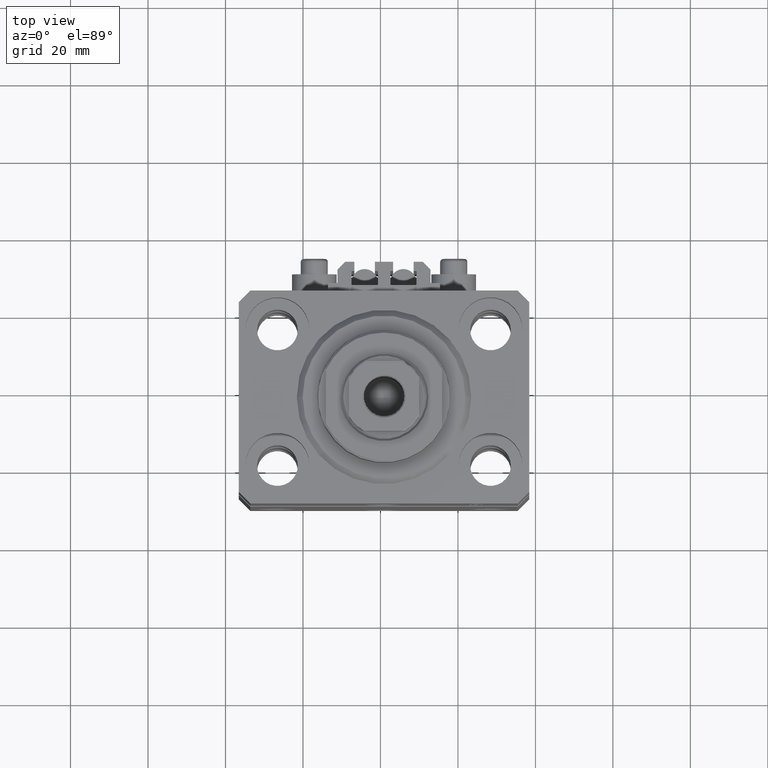
[diagram: clean part render]
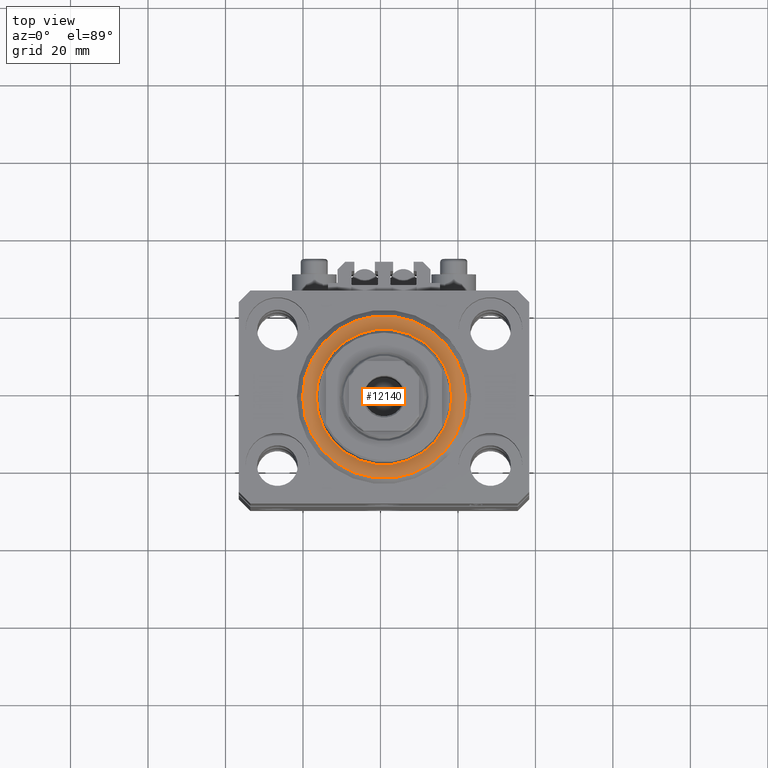
[diagram: same view with one face highlighted and labeled with its STEP entity id]
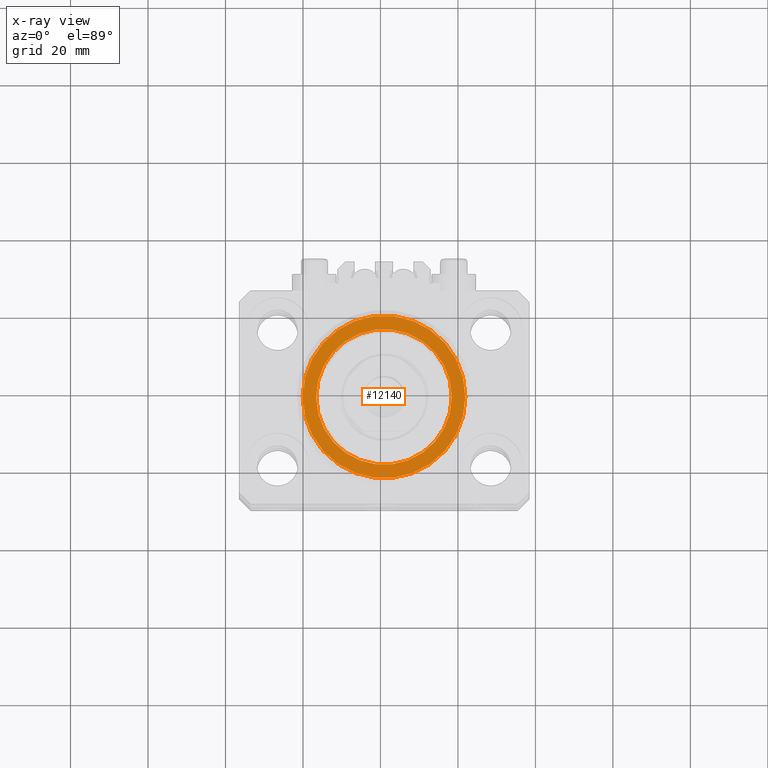
[diagram: x-ray of the same camera — body ghosted, the highlighted face saturated]
A machine part, top view. The second image highlights one B-rep face of the part: STEP entity #12140.
The next image is the same camera in x-ray: the body ghosted, the highlighted face saturated — about 0% of this face is hidden behind the body in this view.
In plain terms, the highlighted planar face has unit normal (0, 0, -1).
Its self-contained STEP definition (entity closure, byte-faithful):
#1990 = VERTEX_POINT ( 'NONE', #32033 ) ;
#4994 = AXIS2_PLACEMENT_3D ( 'NONE', #5464, #13008, #21065 ) ;
#5099 = AXIS2_PLACEMENT_3D ( 'NONE', #43881, #29037, #25377 ) ;
#5464 = CARTESIAN_POINT ( 'NONE',  ( 0.000000000000000000, 0.000000000000000000, 0.000000000000000000 ) ) ;
#8362 = EDGE_CURVE ( 'NONE', #26997, #44157, #31483, .T. ) ;
#8419 = CARTESIAN_POINT ( 'NONE',  ( 17.50000000000000000, 0.000000000000000000, -2.168404344971008868E-16 ) ) ;
#10084 = DIRECTION ( 'NONE',  ( 1.000000000000000000, 0.000000000000000000, 0.000000000000000000 ) ) ;
#12140 = ADVANCED_FACE ( 'NONE', ( #47774, #39769 ), #31983, .F. ) ;
#12493 = DIRECTION ( 'NONE',  ( -0.000000000000000000, -0.000000000000000000, -1.000000000000000000 ) ) ;
#13008 = DIRECTION ( 'NONE',  ( 0.000000000000000000, 0.000000000000000000, 1.000000000000000000 ) ) ;
#14104 = CARTESIAN_POINT ( 'NONE',  ( -17.50000000000000000, 2.143131898507868643E-15, -2.168404344971008868E-16 ) ) ;
#14260 = CARTESIAN_POINT ( 'NONE',  ( 20.99999999999998934, 0.000000000000000000, 0.000000000000000000 ) ) ;
#15180 = CARTESIAN_POINT ( 'NONE',  ( 0.000000000000000000, 0.000000000000000000, 0.000000000000000000 ) ) ;
#16150 = CARTESIAN_POINT ( 'NONE',  ( 0.000000000000000000, 0.000000000000000000, 0.000000000000000000 ) ) ;
#17504 = EDGE_CURVE ( 'NONE', #1990, #34114, #27784, .T. ) ;
#18721 = ORIENTED_EDGE ( 'NONE', *, *, #29379, .T. ) ;
#21065 = DIRECTION ( 'NONE',  ( 1.000000000000000000, 0.000000000000000000, 0.000000000000000000 ) ) ;
#24547 = ORIENTED_EDGE ( 'NONE', *, *, #38122, .T. ) ;
#25377 = DIRECTION ( 'NONE',  ( 1.000000000000000000, 0.000000000000000000, -0.000000000000000000 ) ) ;
#26290 = AXIS2_PLACEMENT_3D ( 'NONE', #16150, #46322, #31016 ) ;
#26722 = ORIENTED_EDGE ( 'NONE', *, *, #8362, .T. ) ;
#26997 = VERTEX_POINT ( 'NONE', #14104 ) ;
#27784 = CIRCLE ( 'NONE', #31680, 20.99999999999998934 ) ;
#29037 = DIRECTION ( 'NONE',  ( 0.000000000000000000, 0.000000000000000000, 1.000000000000000000 ) ) ;
#29379 = EDGE_CURVE ( 'NONE', #34114, #1990, #42424, .T. ) ;
#30188 = CIRCLE ( 'NONE', #26290, 17.50000000000000000 ) ;
#31016 = DIRECTION ( 'NONE',  ( 1.000000000000000000, 0.000000000000000000, 0.000000000000000000 ) ) ;
#31483 = CIRCLE ( 'NONE', #4994, 17.50000000000000000 ) ;
#31680 = AXIS2_PLACEMENT_3D ( 'NONE', #15180, #12493, #45378 ) ;
#31983 = PLANE ( 'NONE',  #5099 ) ;
#32033 = CARTESIAN_POINT ( 'NONE',  ( -20.99999999999998934, 2.663606788145492628E-15, 0.000000000000000000 ) ) ;
#32399 = EDGE_LOOP ( 'NONE', ( #24547, #26722 ) ) ;
#34114 = VERTEX_POINT ( 'NONE', #14260 ) ;
#36877 = DIRECTION ( 'NONE',  ( -0.000000000000000000, -0.000000000000000000, -1.000000000000000000 ) ) ;
#38122 = EDGE_CURVE ( 'NONE', #44157, #26997, #30188, .T. ) ;
#39769 = FACE_OUTER_BOUND ( 'NONE', #44998, .T. ) ;
#41669 = AXIS2_PLACEMENT_3D ( 'NONE', #43443, #36877, #10084 ) ;
#42424 = CIRCLE ( 'NONE', #41669, 20.99999999999998934 ) ;
#43443 = CARTESIAN_POINT ( 'NONE',  ( 0.000000000000000000, 0.000000000000000000, 0.000000000000000000 ) ) ;
#43881 = CARTESIAN_POINT ( 'NONE',  ( 0.000000000000000000, 0.000000000000000000, 0.000000000000000000 ) ) ;
#44157 = VERTEX_POINT ( 'NONE', #8419 ) ;
#44998 = EDGE_LOOP ( 'NONE', ( #18721, #45253 ) ) ;
#45253 = ORIENTED_EDGE ( 'NONE', *, *, #17504, .T. ) ;
#45378 = DIRECTION ( 'NONE',  ( 1.000000000000000000, 0.000000000000000000, 0.000000000000000000 ) ) ;
#46322 = DIRECTION ( 'NONE',  ( 0.000000000000000000, 0.000000000000000000, 1.000000000000000000 ) ) ;
#47774 = FACE_BOUND ( 'NONE', #32399, .T. ) ;